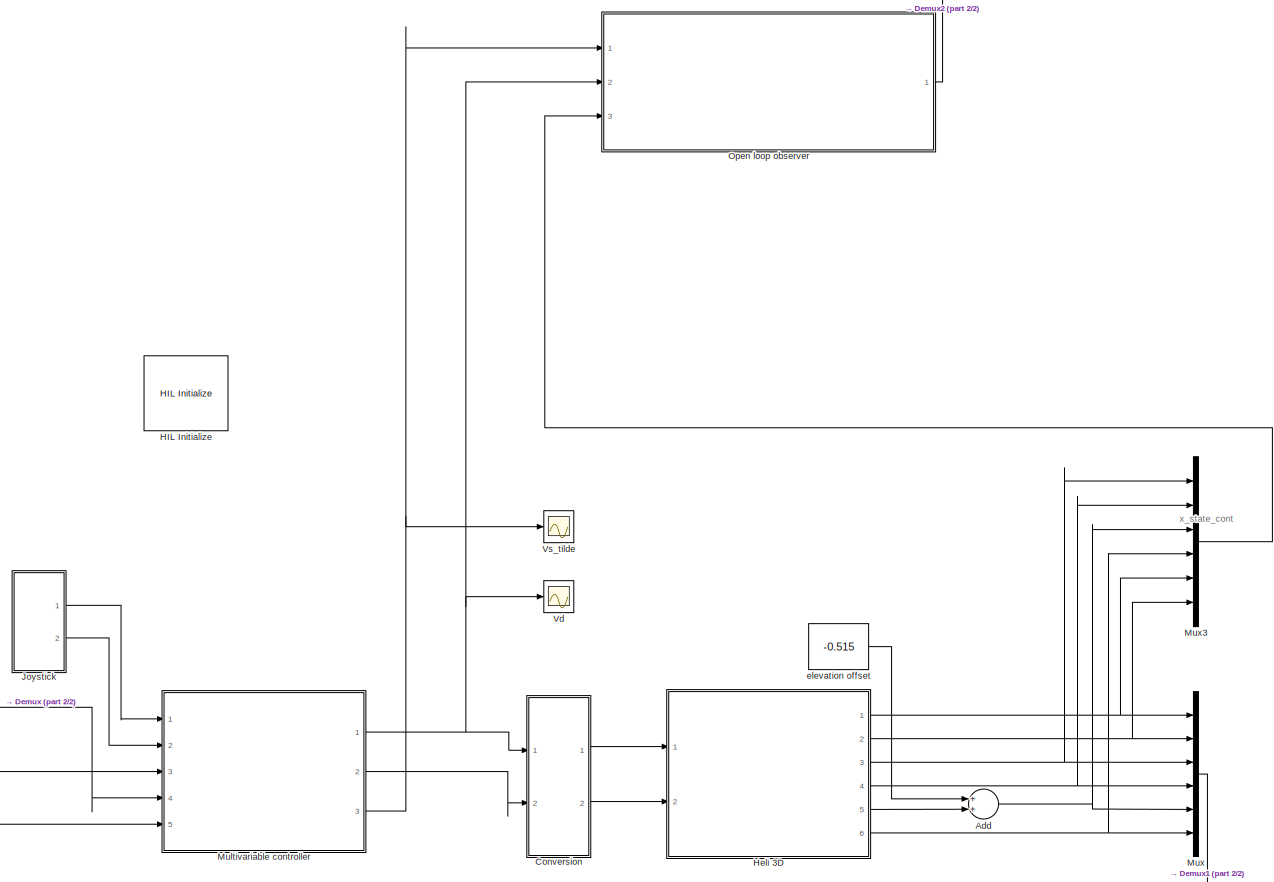
[diagram: root canvas - part 1/2, right side, full height]
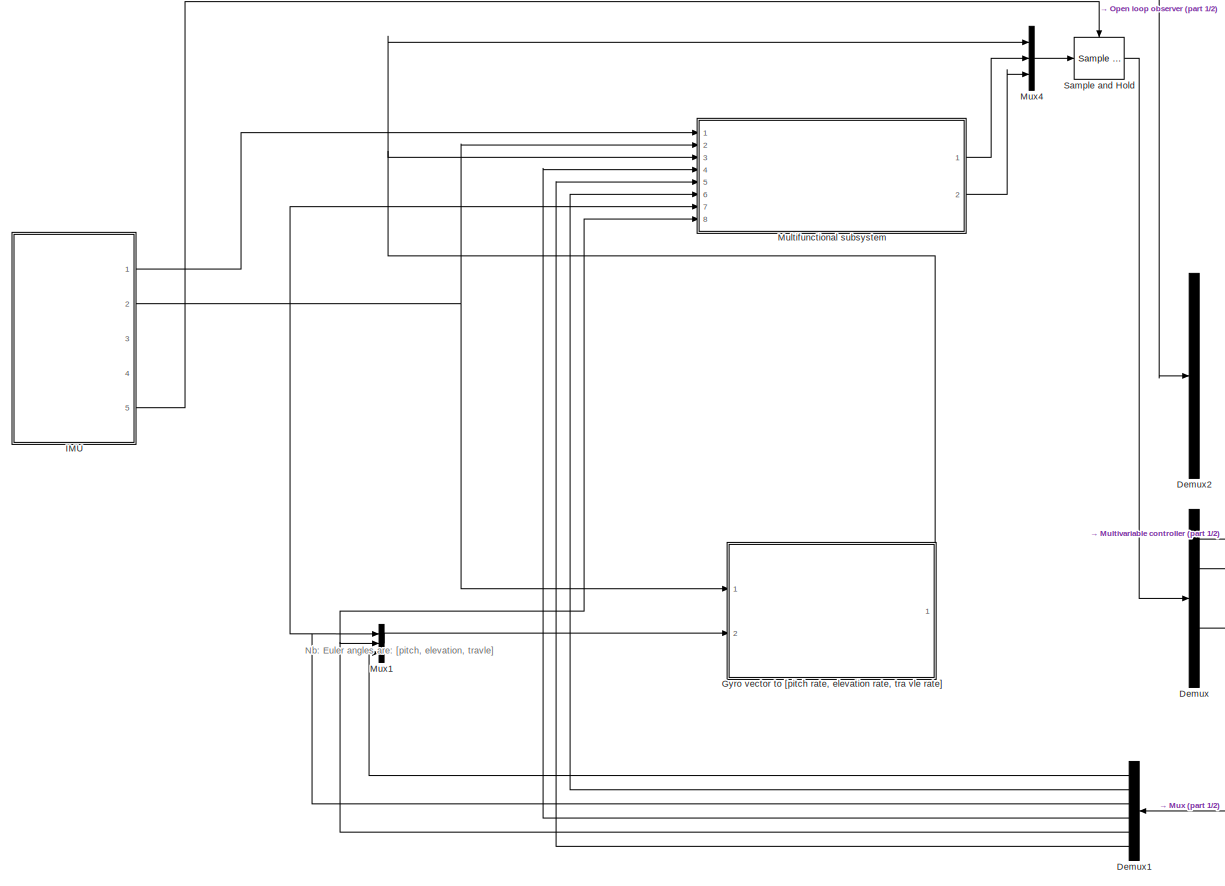
[diagram: root canvas - part 2/2, left side, full height]
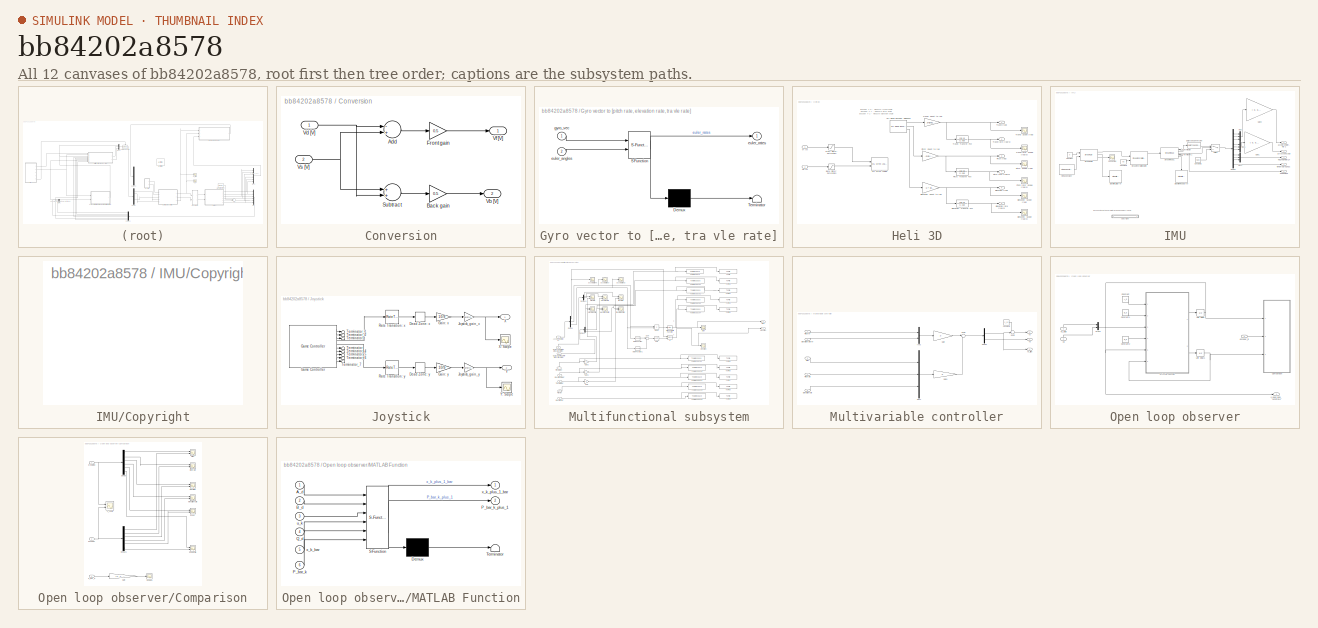
[diagram: thumbnail index - all 12 canvases of the model, root first then tree order]
MODEL slx_bb84202a8578
KIND model
CONFIG AbsTol = auto
CONFIG FixedStep = 0.002
CONFIG MaxStep = auto
CONFIG MinStep = auto
CONFIG PostLoadFcn = qc_set_target_type(getConfigSet(bdroot, 'QUARC Default Target Configuration'));
CONFIG RelTol = 1e-3
CONFIG SampleTimeConstraint = Unconstrained
CONFIG Solver = ode1
CONFIG SolverMode = Auto
CONFIG SolverName = ode1
CONFIG StartTime = 0.0
CONFIG StopTime = inf
BLOCK [Sum] Add
  InputSameDT = off
  OutDataTypeStr = Inherit: Inherit via internal rule
  Ports = [2, 1]
  SaturateOnIntegerOverflow = off
BLOCK [SubSystem] Conversion
  Ports = [2, 2]
  RequestExecContextInheritance = off
  Variant = off
BLOCK [Sum] Conversion/Add
  InputSameDT = off
  Inputs = -+
  OutDataTypeStr = Inherit: Inherit via internal rule
  Ports = [2, 1]
  SaturateOnIntegerOverflow = off
BLOCK [Gain] Conversion/Back gain
  Gain = 0.5
  OutDataTypeStr = Inherit: Inherit via internal rule
  ParamDataTypeStr = Inherit: Inherit via internal rule
  SaturateOnIntegerOverflow = off
BLOCK [Gain] Conversion/Front gain
  Gain = 0.5
  OutDataTypeStr = Inherit: Inherit via internal rule
  ParamDataTypeStr = Inherit: Inherit via internal rule
  SaturateOnIntegerOverflow = off
BLOCK [Sum] Conversion/Subtract
  InputSameDT = off
  OutDataTypeStr = Inherit: Inherit via internal rule
  Ports = [2, 1]
  SaturateOnIntegerOverflow = off
BLOCK [Outport] Conversion/Vb [V]
  IconDisplay = Port number
  Port = 2
BLOCK [Inport] Conversion/Vd [V]
  IconDisplay = Port number
BLOCK [Outport] Conversion/Vf [V]
  IconDisplay = Port number
BLOCK [Inport] Conversion/Vs [V]
  IconDisplay = Port number
  Port = 2
BLOCK [Demux] Demux
  DisplayOption = bar
  Outputs = 5
  Ports = [1, 5]
BLOCK [Demux] Demux1
  DisplayOption = bar
  Outputs = 6
  Ports = [1, 6]
BLOCK [Demux] Demux2
  DisplayOption = bar
  Outputs = 6
  Ports = [1, 6]
BLOCK [SubSystem] Gyro vector to [pitch rate, elevation rate, tra vle rate]
  ErrorFcn = Stateflow.Translate.translate
  PermitHierarchicalResolution = ExplicitOnly
  Ports = [2, 1]
  RequestExecContextInheritance = off
  SFBlockType = MATLAB Function
  TreatAsAtomicUnit = on
  Variant = off
BLOCK [Demux] Gyro vector to [pitch rate, elevation rate, tra vle rate]/ Demux 
  Outputs = 1
  Ports = [1, 1]
BLOCK [S-Function] Gyro vector to [pitch rate, elevation rate, tra vle rate]/ SFunction 
  EnableBusSupport = on
  FunctionName = sf_sfun
  PortCounts = [2 2]
  Ports = [2, 2]
  SFunctionDeploymentMode = off
  Tag = Stateflow S-Function heli_q8 2
BLOCK [Terminator] Gyro vector to [pitch rate, elevation rate, tra vle rate]/ Terminator 
BLOCK [Inport] Gyro vector to [pitch rate, elevation rate, tra vle rate]/euler_angles
  IconDisplay = Port number
  Port = 2
BLOCK [Outport] Gyro vector to [pitch rate, elevation rate, tra vle rate]/euler_rates
  IconDisplay = Port number
BLOCK [Inport] Gyro vector to [pitch rate, elevation rate, tra vle rate]/gyro_vec
  IconDisplay = Port number
BLOCK [Reference] HIL Initialize  REF=quarc_library/Data Acquisition/Generic/Configuration/HIL Initialize
  AttributesFormatString = %<object_name> (%<board_type>-%<board_number>)
  Ports = []
  Priority = -99
  SourceBlock = quarc_library/Data Acquisition/Generic/Configuration/HIL Initialize
  SourceType = HIL Initialize
  UserDataPersistent = on
BLOCK [SubSystem] Heli 3D
  Ports = [2, 6]
  RequestExecContextInheritance = off
  Variant = off
BLOCK [Saturate] Heli 3D/Back motor: Saturation
  InputPortMap = u0
  LowerLimit = -5
  Ports = [1, 1]
  UpperLimit = 5
BLOCK [Outport] Heli 3D/Elevation [rad]
  IconDisplay = Port number
  Port = 5
BLOCK [Outport] Heli 3D/Elevation rate [rad//s]
  IconDisplay = Port number
  Port = 6
BLOCK [Gain] Heli 3D/Elevation: Count to rad
  Gain = -2 * pi /4096
  OutDataTypeStr = Inherit: Inherit via internal rule
  ParamDataTypeStr = Inherit: Inherit via internal rule
  SaturateOnIntegerOverflow = off
BLOCK [Scope] Heli 3D/Elevation: Scope [rad//s]
  Ports = [1]
  ScopeSpecificationString = C++SS(StrPVP('Location','[1236, 673, 1560, 912]'),StrPVP('Open','off'),MxPVP('AxesTitles',24,'struct(''axes1'',''%<SignalLabel>'')'),MxPVP('ScopeGraphics',28,'struct(''FigureColor'',''[0.5 0.5 0.5]'',''AxesColor'',''[0 0 0]'',''AxesTickColor'',''[1 1 1]'',''LineColors'',''[1 1 0;1 0 1;0 1 1;1 0 0;0 1 0;0 0 1]'',''LineStyles'',''-|-|-|-|-|-'',''LineWidths'',''[0.5 0.5 0.5 0.5 0.5 0.5]'',''MarkerSty...<+342ch>
BLOCK [Scope] Heli 3D/Elevation: Scope [rad]
  Ports = [1]
  ScopeSpecificationString = Simulink.scopes.TimeScopeBlockCfg('CurrentConfiguration', extmgr.ConfigurationSet(extmgr.Configuration('Core','General UI',true),extmgr.Configuration('Core','Source UI',true),extmgr.Configuration('Sources','WiredSimulink',true,'DataLoggingVariableName','ScopeData12','DataLoggingSaveFormat','StructureWithTime','DataLoggingLimitDataPoints',true,'DataLoggingDecimation','1','DataLoggingDecimateData',t...<+1718ch>
BLOCK [TransferFcn] Heli 3D/Elevation: Transfer Fcn
  Denominator = [1 50]
  Numerator = [50 0]
BLOCK [Saturate] Heli 3D/Front motor: Saturation
  InputPortMap = u0
  LowerLimit = -5
  Ports = [1, 1]
  UpperLimit = 5
BLOCK [Reference] Heli 3D/HIL Read Encoder Timebase  REF=quarc_library/Data Acquisition/Generic/Timebases/HIL Read Encoder
Timebase
  AttributesFormatString = (%<object_name>)
  Ports = [0, 3]
  SourceBlock = quarc_library/Data Acquisition/Generic/Timebases/HIL Read Encoder\nTimebase
  SourceType = HIL Read Encoder Timebase
  UserDataPersistent = on
BLOCK [Reference] Heli 3D/HIL Write Analog  REF=quarc_library/Data Acquisition/Generic/Immediate I//O/HIL Write Analog
  AttributesFormatString = (%<object_name>)
  Ports = [2]
  SourceBlock = quarc_library/Data Acquisition/Generic/Immediate I//O/HIL Write Analog
  SourceType = HIL Write Analog
  UserDataPersistent = on
BLOCK [Outport] Heli 3D/Pitch [rad]
  IconDisplay = Port number
  Port = 3
BLOCK [Outport] Heli 3D/Pitch rate [rad//s]
  IconDisplay = Port number
  Port = 4
BLOCK [Gain] Heli 3D/Pitch: Count to rad
  Gain = -2*pi /4096
  OutDataTypeStr = Inherit: Inherit via internal rule
  ParamDataTypeStr = Inherit: Inherit via internal rule
  SaturateOnIntegerOverflow = off
BLOCK [Scope] Heli 3D/Pitch: Scope [rad]
  Ports = [1]
  ScopeSpecificationString = Simulink.scopes.TimeScopeBlockCfg('CurrentConfiguration', extmgr.ConfigurationSet(extmgr.Configuration('Core','General UI',true),extmgr.Configuration('Core','Source UI',true),extmgr.Configuration('Sources','WiredSimulink',true,'DataLoggingVariableName','ScopeData10','DataLoggingSaveFormat','StructureWithTime','DataLoggingLimitDataPoints',true,'DataLoggingDecimation','1','DataLoggingDecimateData',t...<+1672ch>
BLOCK [TransferFcn] Heli 3D/Pitch: Transfer Fcn
  Denominator = [1 50]
  Numerator = [50 0]
BLOCK [Scope] Heli 3D/Ptich rate: Scope [rad//s]
  Ports = [1]
  ScopeSpecificationString = C++SS(StrPVP('Location','[1236, 673, 1560, 912]'),StrPVP('Open','off'),MxPVP('AxesTitles',24,'struct(''axes1'',''%<SignalLabel>'')'),MxPVP('ScopeGraphics',28,'struct(''FigureColor'',''[0.5 0.5 0.5]'',''AxesColor'',''[0 0 0]'',''AxesTickColor'',''[1 1 1]'',''LineColors'',''[1 1 0;1 0 1;0 1 1;1 0 0;0 1 0;0 0 1]'',''LineStyles'',''-|-|-|-|-|-'',''LineWidths'',''[0.5 0.5 0.5 0.5 0.5 0.5]'',''MarkerSty...<+342ch>
BLOCK [Outport] Heli 3D/Travel [rad]
  IconDisplay = Port number
BLOCK [Outport] Heli 3D/Travel rate [rad//s]
  IconDisplay = Port number
  Port = 2
BLOCK [Scope] Heli 3D/Travel rate: Scope [rad//s]
  Ports = [1]
  ScopeSpecificationString = Simulink.scopes.TimeScopeBlockCfg('CurrentConfiguration', extmgr.ConfigurationSet(extmgr.Configuration('Core','General UI',true),extmgr.Configuration('Core','Source UI',true),extmgr.Configuration('Sources','WiredSimulink',true,'DataLoggingVariableName','ScopeData9','DataLoggingSaveFormat','StructureWithTime','DataLoggingLimitDataPoints',true,'DataLoggingDecimation','1','DataLoggingDecimateData',tr...<+1672ch>
BLOCK [Gain] Heli 3D/Travel: Count to rad
  Gain = 2*pi/8192
  OutDataTypeStr = Inherit: Inherit via internal rule
  ParamDataTypeStr = Inherit: Inherit via internal rule
  SaturateOnIntegerOverflow = off
BLOCK [Scope] Heli 3D/Travel: Scope [rad]
  Ports = [1]
  ScopeSpecificationString = Simulink.scopes.TimeScopeBlockCfg('CurrentConfiguration', extmgr.ConfigurationSet(extmgr.Configuration('Core','General UI',true),extmgr.Configuration('Core','Source UI',true),extmgr.Configuration('Sources','WiredSimulink',true,'DataLoggingVariableName','ScopeData8','DataLoggingSaveFormat','StructureWithTime','DataLoggingLimitDataPoints',true,'DataLoggingDecimation','1','DataLoggingDecimateData',tr...<+1672ch>
BLOCK [TransferFcn] Heli 3D/Travel: Transfer Fcn
  Denominator = [1 50]
  Numerator = [50 0]
BLOCK [Inport] Heli 3D/Vb [V]
  IconDisplay = Port number
  Port = 2
BLOCK [Inport] Heli 3D/Vf [V]
  IconDisplay = Port number
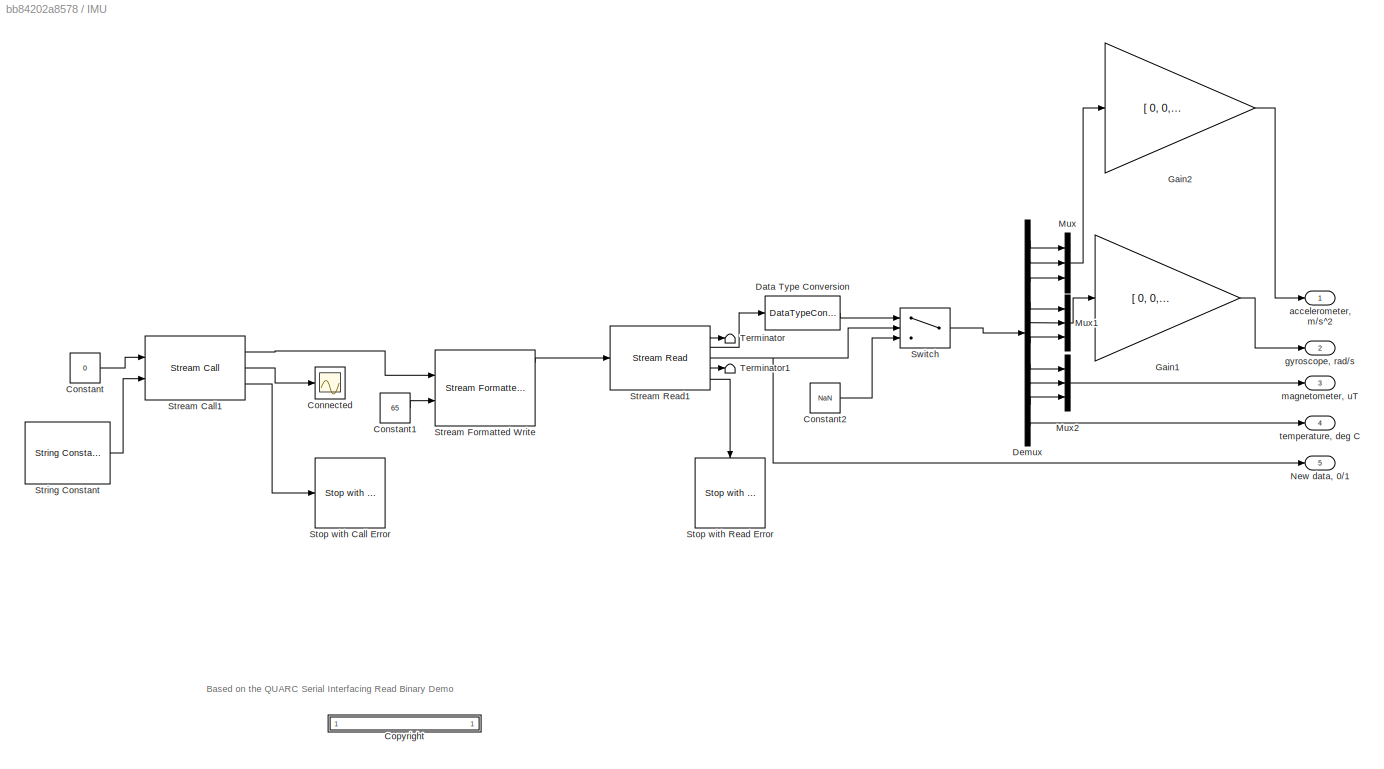
BLOCK [SubSystem] IMU
  Ports = [0, 5]
  RequestExecContextInheritance = off
  Variant = off
BLOCK [Scope] IMU/Connected
  Ports = [1]
  ScopeSpecificationString = C++SS(StrPVP('Location','[9, 751, 333, 990]'),StrPVP('Open','off'),MxPVP('AxesTitles',24,'struct(''axes1'',''%<SignalLabel>'')'),StrPVP('DataFormat','StructureWithTime'),StrPVP('BlockParamSampleTime','0'),StrPVP('LimitDataPoints','on'),StrPVP('Decimation','1'),StrPVP('BlockParamSampleInput','off'),StrPVP('SaveName','ScopeData'),StrPVP('SaveName','ScopeData6'))
BLOCK [Constant] IMU/Constant
  Value = 0
BLOCK [Constant] IMU/Constant1
  Value = 65
BLOCK [Constant] IMU/Constant2
  Value = NaN
BLOCK [SubSystem] IMU/<copyright redacted>
  OpenFcn = web('http://www.quanser.com/');
  Permissions = NoReadOrWrite
  PermitHierarchicalResolution = None
  Ports = []
  RequestExecContextInheritance = off
  Variant = off
BLOCK [DataTypeConversion] IMU/Data Type Conversion
  OutDataTypeStr = double
  RndMeth = Floor
  SaturateOnIntegerOverflow = off
BLOCK [Demux] IMU/Demux
  DisplayOption = bar
  Outputs = 10
  Ports = [1, 10]
BLOCK [Gain] IMU/Gain1
  Gain = [ 0, 0, 1; 0, 1, 0; -1, 0, 0]
  Multiplication = Matrix(K*u) (u vector)
  OutDataTypeStr = Inherit: Inherit via internal rule
  ParamDataTypeStr = Inherit: Inherit via internal rule
  SaturateOnIntegerOverflow = off
BLOCK [Gain] IMU/Gain2
  Gain = [ 0, 0, 1; 0, 1, 0; -1, 0, 0]
  Multiplication = Matrix(K*u) (u vector)
  OutDataTypeStr = Inherit: Inherit via internal rule
  ParamDataTypeStr = Inherit: Inherit via internal rule
  SaturateOnIntegerOverflow = off
BLOCK [Mux] IMU/Mux
  DisplayOption = bar
  Inputs = 3
  Ports = [3, 1]
BLOCK [Mux] IMU/Mux1
  DisplayOption = bar
  Inputs = 3
  Ports = [3, 1]
BLOCK [Mux] IMU/Mux2
  DisplayOption = bar
  Inputs = 3
  Ports = [3, 1]
BLOCK [Outport] IMU/New data, 0//1
  IconDisplay = Port number
  Port = 5
BLOCK [Reference] IMU/Stop with Call Error  REF=quarc_library/Sinks/Error Handling/Stop with Error
  Ports = [1]
  SourceBlock = quarc_library/Sinks/Error Handling/Stop with Error
  SourceType = Stop with Error
BLOCK [Reference] IMU/Stop with Read Error  REF=quarc_library/Sinks/Error Handling/Stop with Error
  Ports = [1]
  SourceBlock = quarc_library/Sinks/Error Handling/Stop with Error
  SourceType = Stop with Error
BLOCK [Reference] IMU/Stream Call1  REF=quarc_library/Communications/Intermediate/Stream Call
  Ports = [2, 3]
  SourceBlock = quarc_library/Communications/Intermediate/Stream Call
  SourceType = Stream Call
BLOCK [Reference] IMU/Stream Formatted Write  REF=quarc_library/Communications/Intermediate/Stream Formatted
Write
  Ports = [2, 5]
  SourceBlock = quarc_library/Communications/Intermediate/Stream Formatted\nWrite
  SourceType = Stream Formatted Write
BLOCK [Reference] IMU/Stream Read1  REF=quarc_library/Communications/Intermediate/Stream Read
  Ports = [1, 5]
  SourceBlock = quarc_library/Communications/Intermediate/Stream Read
  SourceType = Stream Read
BLOCK [Reference] IMU/String Constant  REF=quarc_library/Strings/String Constant
  AttributesFormatString = "serial://IMU:3?baud=115200,word=8,parity=none,stop=1"
  Ports = [0, 1]
  SourceBlock = quarc_library/Strings/String Constant
  SourceType = String Constant
BLOCK [Switch] IMU/Switch
  Criteria = u2 > Threshold
  InputSameDT = off
  SaturateOnIntegerOverflow = off
BLOCK [Terminator] IMU/Terminator
BLOCK [Terminator] IMU/Terminator1
BLOCK [Outport] IMU/accelerometer, m//s^2
  IconDisplay = Port number
BLOCK [Outport] IMU/gyroscope, rad//s
  IconDisplay = Port number
  Port = 2
BLOCK [Outport] IMU/magnetometer, uT
  IconDisplay = Port number
  Port = 3
BLOCK [Outport] IMU/temperature, deg C
  IconDisplay = Port number
  Port = 4
BLOCK [SubSystem] Joystick
  Ports = [0, 2]
  RequestExecContextInheritance = off
  Variant = off
BLOCK [DeadZone] Joystick/Dead Zone: x
  LowerValue = -0.1
  UpperValue = 0.1
BLOCK [DeadZone] Joystick/Dead Zone: y
  LowerValue = -0.1
  UpperValue = 0.1
BLOCK [Gain] Joystick/Gain: x
  Gain = 10/9
  OutDataTypeStr = Inherit: Inherit via internal rule
  ParamDataTypeStr = Inherit: Inherit via internal rule
  SaturateOnIntegerOverflow = off
BLOCK [Gain] Joystick/Gain: y
  Gain = 10/9
  OutDataTypeStr = Inherit: Inherit via internal rule
  ParamDataTypeStr = Inherit: Inherit via internal rule
  SaturateOnIntegerOverflow = off
BLOCK [Reference] Joystick/Game Controller  REF=quarc_library/Devices/Peripherals/Target/Game Controller
  Ports = [0, 10]
  SourceBlock = quarc_library/Devices/Peripherals/Target/Game Controller
  SourceType = Game Controller
BLOCK [Gain] Joystick/Joystick_gain_x
  Gain = Joystick_gain_x
  OutDataTypeStr = Inherit: Inherit via internal rule
  ParamDataTypeStr = Inherit: Inherit via internal rule
  SaturateOnIntegerOverflow = off
BLOCK [Gain] Joystick/Joystick_gain_y
  Gain = Joystick_gain_y
  OutDataTypeStr = Inherit: Inherit via internal rule
  ParamDataTypeStr = Inherit: Inherit via internal rule
  SaturateOnIntegerOverflow = off
BLOCK [RateTransition] Joystick/Rate Transition: x
BLOCK [RateTransition] Joystick/Rate Transition: y
BLOCK [Terminator] Joystick/Terminator
BLOCK [Terminator] Joystick/Terminator1
BLOCK [Terminator] Joystick/Terminator_1
BLOCK [Terminator] Joystick/Terminator_2
BLOCK [Terminator] Joystick/Terminator_4
BLOCK [Terminator] Joystick/Terminator_5
BLOCK [Terminator] Joystick/Terminator_6
BLOCK [Terminator] Joystick/Terminator_7
BLOCK [Outport] Joystick/X
  IconDisplay = Port number
BLOCK [Scope] Joystick/X: Scope
  Ports = [1]
  ScopeSpecificationString = C++SS(StrPVP('Location','[894, 60, 1218, 301]'),StrPVP('Open','off'),StrPVP('ZoomMode','yonly'),MxPVP('AxesTitles',24,'struct(''axes1'',''%<SignalLabel>'')'),MxPVP('ScopeGraphics',28,'struct(''FigureColor'',''[0.5 0.5 0.5]'',''AxesColor'',''[0 0 0]'',''AxesTickColor'',''[1 1 1]'',''LineColors'',''[1 1 0;1 0 1;0 1 1;1 0 0;0 1 0;0 0 1]'',''LineStyles'',''-|-|-|-|-|-'',''LineWidths'',''[0.5 0.5 0.5 0...<+364ch>
BLOCK [Outport] Joystick/Y
  IconDisplay = Port number
  Port = 2
BLOCK [Scope] Joystick/Y: Scope
  Ports = [1]
  ScopeSpecificationString = C++SS(StrPVP('Location','[894, 368, 1218, 604]'),StrPVP('Open','off'),MxPVP('AxesTitles',24,'struct(''axes1'',''%<SignalLabel>'')'),MxPVP('ScopeGraphics',28,'struct(''FigureColor'',''[0.5 0.5 0.5]'',''AxesColor'',''[0 0 0]'',''AxesTickColor'',''[1 1 1]'',''LineColors'',''[1 1 0;1 0 1;0 1 1;1 0 0;0 1 0;0 0 1]'',''LineStyles'',''-|-|-|-|-|-'',''LineWidths'',''[0.5 0.5 0.5 0.5 0.5 0.5]'',''MarkerStyl...<+340ch>
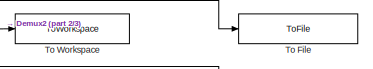
[diagram: Multifunctional subsystem - part 1/3, top right region]
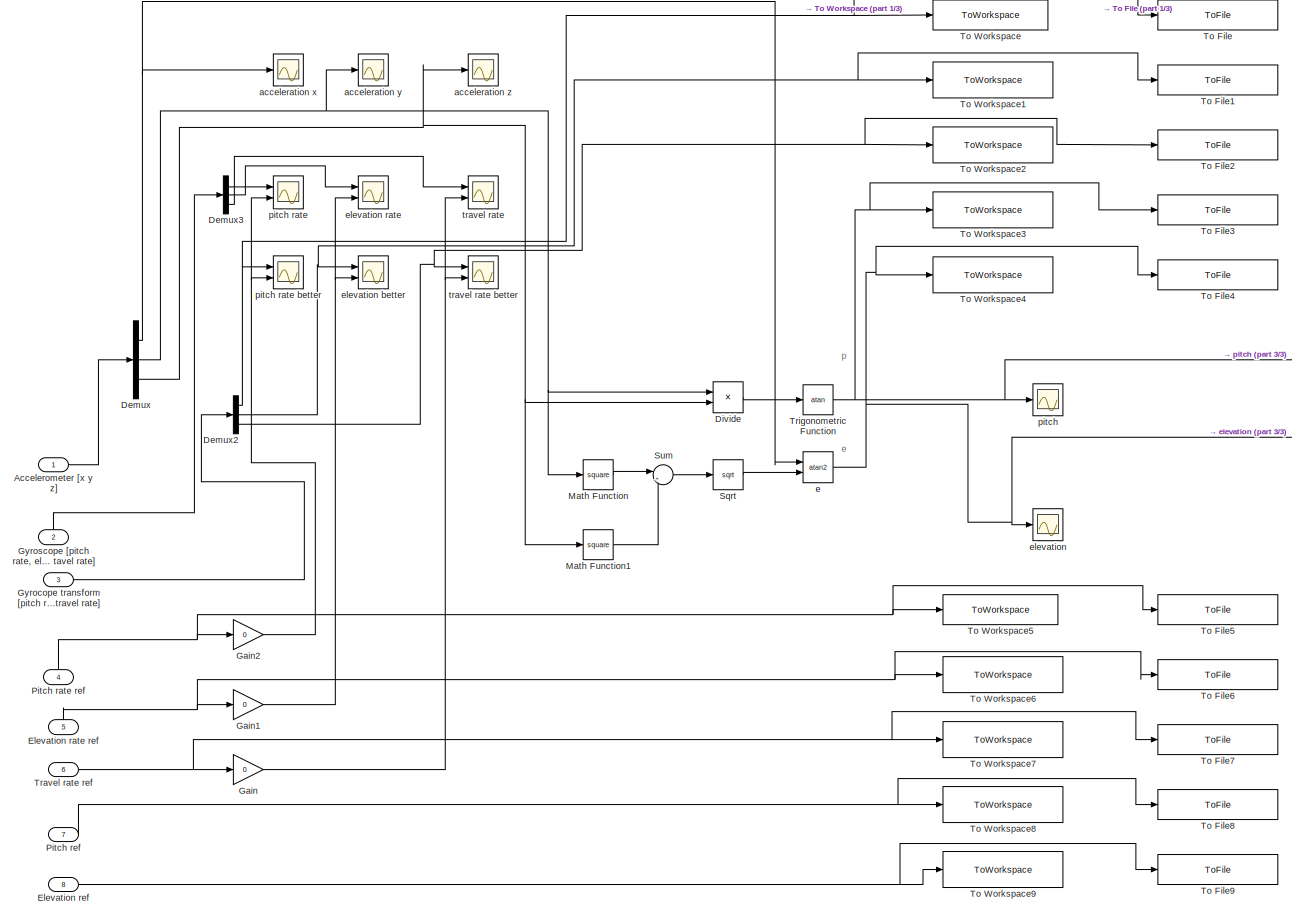
[diagram: Multifunctional subsystem - part 2/3, most of the canvas]
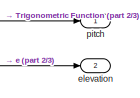
[diagram: Multifunctional subsystem - part 3/3, middle right region]
BLOCK [SubSystem] Multifunctional subsystem
  Ports = [8, 2]
  RequestExecContextInheritance = off
  Variant = off
BLOCK [Inport] Multifunctional subsystem/Accelerometer [x y z]
  IconDisplay = Port number
BLOCK [Demux] Multifunctional subsystem/Demux
  DisplayOption = bar
  Outputs = 3
  Ports = [1, 3]
BLOCK [Demux] Multifunctional subsystem/Demux2
  DisplayOption = bar
  Outputs = 3
  Ports = [1, 3]
BLOCK [Demux] Multifunctional subsystem/Demux3
  DisplayOption = bar
  Outputs = 3
  Ports = [1, 3]
BLOCK [Product] Multifunctional subsystem/Divide
  InputSameDT = off
  Inputs = */
  OutDataTypeStr = Inherit: Inherit via internal rule
  Ports = [2, 1]
  RndMeth = Floor
  SaturateOnIntegerOverflow = off
BLOCK [Inport] Multifunctional subsystem/Elevation rate ref
  IconDisplay = Port number
  Port = 5
BLOCK [Inport] Multifunctional subsystem/Elevation ref
  IconDisplay = Port number
  Port = 8
BLOCK [Gain] Multifunctional subsystem/Gain
  Gain = 0
  OutDataTypeStr = Inherit: Inherit via internal rule
  ParamDataTypeStr = Inherit: Inherit via internal rule
  SaturateOnIntegerOverflow = off
BLOCK [Gain] Multifunctional subsystem/Gain1
  Gain = 0
  OutDataTypeStr = Inherit: Inherit via internal rule
  ParamDataTypeStr = Inherit: Inherit via internal rule
  SaturateOnIntegerOverflow = off
BLOCK [Gain] Multifunctional subsystem/Gain2
  Gain = 0
  OutDataTypeStr = Inherit: Inherit via internal rule
  ParamDataTypeStr = Inherit: Inherit via internal rule
  SaturateOnIntegerOverflow = off
BLOCK [Inport] Multifunctional subsystem/Gyrocope transform [pitch rate, elevation rate, travel rate]
  IconDisplay = Port number
  Port = 3
BLOCK [Inport] Multifunctional subsystem/Gyroscope [pitch rate, elevation rate,  tavel rate]
  IconDisplay = Port number
  Port = 2
BLOCK [Math] Multifunctional subsystem/Math Function
  Operator = square
  Ports = [1, 1]
BLOCK [Math] Multifunctional subsystem/Math Function1
  Operator = square
  Ports = [1, 1]
BLOCK [Inport] Multifunctional subsystem/Pitch rate ref
  IconDisplay = Port number
  Port = 4
BLOCK [Inport] Multifunctional subsystem/Pitch ref
  IconDisplay = Port number
  Port = 7
BLOCK [Sqrt] Multifunctional subsystem/Sqrt
BLOCK [Sum] Multifunctional subsystem/Sum
  IconShape = round
  InputSameDT = off
  Inputs = |++
  OutDataTypeStr = Inherit: Inherit via internal rule
  Ports = [2, 1]
  SaturateOnIntegerOverflow = off
BLOCK [ToFile] Multifunctional subsystem/To File
  Filename = pitch_rate_imu.mat
  Ports = [1]
BLOCK [ToFile] Multifunctional subsystem/To File1
  Filename = elevation_rate_imu.mat
  Ports = [1]
BLOCK [ToFile] Multifunctional subsystem/To File2
  Filename = travel_rate_imu.mat
  Ports = [1]
BLOCK [ToFile] Multifunctional subsystem/To File3
  Filename = pitch_imu.mat
  Ports = [1]
BLOCK [ToFile] Multifunctional subsystem/To File4
  Filename = elevation_imu.mat
  Ports = [1]
BLOCK [ToFile] Multifunctional subsystem/To File5
  Filename = pitch_rate_encoder.mat
  Ports = [1]
BLOCK [ToFile] Multifunctional subsystem/To File6
  Filename = elevation_rate_encoder.mat
  Ports = [1]
BLOCK [ToFile] Multifunctional subsystem/To File7
  Filename = travel_rate_encoder.mat
  Ports = [1]
BLOCK [ToFile] Multifunctional subsystem/To File8
  Filename = pitch_encoder.mat
  Ports = [1]
BLOCK [ToFile] Multifunctional subsystem/To File9
  Filename = elevation_encoder.mat
  Ports = [1]
BLOCK [ToWorkspace] Multifunctional subsystem/To Workspace
  FixptAsFi = on
  MaxDataPoints = inf
  Ports = [1]
  SampleTime = -1
  Save2DSignal = 3-D array (concatenate along third dimension)
  VariableName = pitch_rate_imu
BLOCK [ToWorkspace] Multifunctional subsystem/To Workspace1
  FixptAsFi = on
  MaxDataPoints = inf
  Ports = [1]
  SampleTime = -1
  Save2DSignal = 3-D array (concatenate along third dimension)
  VariableName = elevation_rate_imu
BLOCK [ToWorkspace] Multifunctional subsystem/To Workspace2
  FixptAsFi = on
  MaxDataPoints = inf
  Ports = [1]
  SampleTime = -1
  Save2DSignal = 3-D array (concatenate along third dimension)
  VariableName = travel_rate_imu
BLOCK [ToWorkspace] Multifunctional subsystem/To Workspace3
  FixptAsFi = on
  MaxDataPoints = inf
  Ports = [1]
  SampleTime = -1
  Save2DSignal = 3-D array (concatenate along third dimension)
  VariableName = pitch_imu
BLOCK [ToWorkspace] Multifunctional subsystem/To Workspace4
  FixptAsFi = on
  MaxDataPoints = inf
  Ports = [1]
  SampleTime = -1
  Save2DSignal = 3-D array (concatenate along third dimension)
  VariableName = elevation_imu
BLOCK [ToWorkspace] Multifunctional subsystem/To Workspace5
  FixptAsFi = on
  MaxDataPoints = inf
  Ports = [1]
  SampleTime = -1
  Save2DSignal = 3-D array (concatenate along third dimension)
  VariableName = pitch_rate_encoder
BLOCK [ToWorkspace] Multifunctional subsystem/To Workspace6
  FixptAsFi = on
  MaxDataPoints = inf
  Ports = [1]
  SampleTime = -1
  Save2DSignal = 3-D array (concatenate along third dimension)
  VariableName = elevation_rate_encoder
BLOCK [ToWorkspace] Multifunctional subsystem/To Workspace7
  FixptAsFi = on
  MaxDataPoints = inf
  Ports = [1]
  SampleTime = -1
  Save2DSignal = 3-D array (concatenate along third dimension)
  VariableName = travel_rate_encoder
BLOCK [ToWorkspace] Multifunctional subsystem/To Workspace8
  FixptAsFi = on
  MaxDataPoints = inf
  Ports = [1]
  SampleTime = -1
  Save2DSignal = 3-D array (concatenate along third dimension)
  VariableName = pitch_encoder
BLOCK [ToWorkspace] Multifunctional subsystem/To Workspace9
  FixptAsFi = on
  MaxDataPoints = inf
  Ports = [1]
  SampleTime = -1
  Save2DSignal = 3-D array (concatenate along third dimension)
  VariableName = elevation_encoder
BLOCK [Inport] Multifunctional subsystem/Travel rate ref
  IconDisplay = Port number
  Port = 6
BLOCK [Trigonometry] Multifunctional subsystem/Trigonometric Function
  Operator = atan
  Ports = [1, 1]
BLOCK [Scope] Multifunctional subsystem/acceleration x
  Ports = [1]
  ScopeSpecificationString = Simulink.scopes.TimeScopeBlockCfg('CurrentConfiguration', extmgr.ConfigurationSet(extmgr.Configuration('Core','General UI',true),extmgr.Configuration('Core','Source UI',true),extmgr.Configuration('Sources','WiredSimulink',true,'DataLoggingVariableName','ScopeData4'),extmgr.Configuration('Visuals','Time Domain',true,'SerializedDisplays',{struct('MinYLimReal','-24.5056','MaxYLimReal','24.40744','YLa...<+1445ch>
BLOCK [Scope] Multifunctional subsystem/acceleration y
  Ports = [1]
  ScopeSpecificationString = Simulink.scopes.TimeScopeBlockCfg('CurrentConfiguration', extmgr.ConfigurationSet(extmgr.Configuration('Core','General UI',true),extmgr.Configuration('Core','Source UI',true),extmgr.Configuration('Sources','WiredSimulink',true,'DataLoggingVariableName','ScopeData5'),extmgr.Configuration('Visuals','Time Domain',true,'SerializedDisplays',{struct('MinYLimReal','-14.26927','MaxYLimReal','15.8184','YLa...<+1446ch>
BLOCK [Scope] Multifunctional subsystem/acceleration z 
  Ports = [1]
  ScopeSpecificationString = Simulink.scopes.TimeScopeBlockCfg('CurrentConfiguration', extmgr.ConfigurationSet(extmgr.Configuration('Core','General UI',true),extmgr.Configuration('Core','Source UI',true),extmgr.Configuration('Sources','WiredSimulink',true,'DataLoggingVariableName','ScopeData6'),extmgr.Configuration('Visuals','Time Domain',true,'SerializedDisplays',{struct('MinYLimReal','-23.35955','MaxYLimReal','14.0989','YLa...<+1449ch>
BLOCK [Trigonometry] Multifunctional subsystem/e
  Operator = atan2
  Ports = [2, 1]
BLOCK [Scope] Multifunctional subsystem/elevation
  Ports = [1]
  ScopeSpecificationString = Simulink.scopes.TimeScopeBlockCfg('CurrentConfiguration', extmgr.ConfigurationSet(extmgr.Configuration('Core','General UI',true),extmgr.Configuration('Core','Source UI',true),extmgr.Configuration('Sources','WiredSimulink',true,'DataLoggingVariableName','ScopeData3'),extmgr.Configuration('Visuals','Time Domain',true,'SerializedDisplays',{struct('MinYLimReal','-1.86315','MaxYLimReal','1.91497','YLab...<+1438ch>
BLOCK [Outport] Multifunctional subsystem/elevation 
  IconDisplay = Port number
  Port = 2
BLOCK [Scope] Multifunctional subsystem/elevation better
  NumInputPorts = 2
  Ports = [2]
  ScopeSpecificationString = Simulink.scopes.TimeScopeBlockCfg('CurrentConfiguration', extmgr.ConfigurationSet(extmgr.Configuration('Core','General UI',true),extmgr.Configuration('Core','Source UI',true),extmgr.Configuration('Sources','WiredSimulink',true,'DataLoggingVariableName','ScopeData2'),extmgr.Configuration('Visuals','Time Domain',true,'SerializedDisplays',{struct('MinYLimReal','-0.91427','MaxYLimReal','0.98867','YLab...<+1498ch>
BLOCK [Scope] Multifunctional subsystem/elevation rate 
  NumInputPorts = 2
  Ports = [2]
  ScopeSpecificationString = Simulink.scopes.TimeScopeBlockCfg('CurrentConfiguration', extmgr.ConfigurationSet(extmgr.Configuration('Core','General UI',true),extmgr.Configuration('Core','Source UI',true),extmgr.Configuration('Sources','WiredSimulink',true,'DataLoggingVariableName','ScopeData9'),extmgr.Configuration('Visuals','Time Domain',true,'SerializedDisplays',{struct('MinYLimReal','-0.77961','MaxYLimReal','0.99421','YLab...<+1526ch>
BLOCK [Scope] Multifunctional subsystem/pitch
  Ports = [1]
  ScopeSpecificationString = Simulink.scopes.TimeScopeBlockCfg('CurrentConfiguration', extmgr.ConfigurationSet(extmgr.Configuration('Core','General UI',true),extmgr.Configuration('Core','Source UI',true),extmgr.Configuration('Sources','WiredSimulink',true,'DataLoggingVariableName','ScopeData2'),extmgr.Configuration('Visuals','Time Domain',true,'SerializedDisplays',{struct('MinYLimReal','-1.95408','MaxYLimReal','1.94942','YLab...<+1458ch>
BLOCK [Outport] Multifunctional subsystem/pitch 
  IconDisplay = Port number
BLOCK [Scope] Multifunctional subsystem/pitch rate 
  NumInputPorts = 2
  Ports = [2]
  ScopeSpecificationString = Simulink.scopes.TimeScopeBlockCfg('CurrentConfiguration', extmgr.ConfigurationSet(extmgr.Configuration('Core','General UI',true),extmgr.Configuration('Core','Source UI',true),extmgr.Configuration('Sources','WiredSimulink',true,'DataLoggingVariableName','ScopeData7'),extmgr.Configuration('Visuals','Time Domain',true,'SerializedDisplays',{struct('MinYLimReal','-2.09387','MaxYLimReal','2.49741','YLab...<+1522ch>
BLOCK [Scope] Multifunctional subsystem/pitch rate better
  NumInputPorts = 2
  Ports = [2]
  ScopeSpecificationString = Simulink.scopes.TimeScopeBlockCfg('CurrentConfiguration', extmgr.ConfigurationSet(extmgr.Configuration('Core','General UI',true),extmgr.Configuration('Core','Source UI',true),extmgr.Configuration('Sources','WiredSimulink',true,'DataLoggingVariableName','ScopeData1'),extmgr.Configuration('Visuals','Time Domain',true,'SerializedDisplays',{struct('MinYLimReal','-2.16758','MaxYLimReal','2.40269','YLab...<+1497ch>
BLOCK [Scope] Multifunctional subsystem/travel rate
  NumInputPorts = 2
  Ports = [2]
  ScopeSpecificationString = Simulink.scopes.TimeScopeBlockCfg('CurrentConfiguration', extmgr.ConfigurationSet(extmgr.Configuration('Core','General UI',true),extmgr.Configuration('Core','Source UI',true),extmgr.Configuration('Sources','WiredSimulink',true,'DataLoggingVariableName','ScopeData8'),extmgr.Configuration('Visuals','Time Domain',true,'SerializedDisplays',{struct('MinYLimReal','-1.24542','MaxYLimReal','1.2467','YLabe...<+1523ch>
BLOCK [Scope] Multifunctional subsystem/travel rate better
  NumInputPorts = 2
  Ports = [2]
  ScopeSpecificationString = Simulink.scopes.TimeScopeBlockCfg('CurrentConfiguration', extmgr.ConfigurationSet(extmgr.Configuration('Core','General UI',true),extmgr.Configuration('Core','Source UI',true),extmgr.Configuration('Sources','WiredSimulink',true,'DataLoggingVariableName','ScopeData3'),extmgr.Configuration('Visuals','Time Domain',true,'SerializedDisplays',{struct('MinYLimReal','-0.20492','MaxYLimReal','0.93989','YLab...<+1498ch>
BLOCK [SubSystem] Multivariable controller
  Ports = [5, 3]
  RequestExecContextInheritance = off
  Variant = off
BLOCK [Constant] Multivariable controller/Constant2
  Value = v_s0
BLOCK [Demux] Multivariable controller/Demux
  DisplayOption = bar
  Outputs = 2
  Ports = [1, 2]
BLOCK [Inport] Multivariable controller/Elevation rate
  IconDisplay = Port number
  Port = 5
BLOCK [Inport] Multivariable controller/Elevation rate ref
  IconDisplay = Port number
  Port = 2
BLOCK [Gain] Multivariable controller/Gain
  Gain = F
  Multiplication = Matrix(K*u) (u vector)
  OutDataTypeStr = Inherit: Inherit via internal rule
  ParamDataTypeStr = Inherit: Inherit via internal rule
  SaturateOnIntegerOverflow = off
BLOCK [Gain] Multivariable controller/Gain1
  Gain = K
  Multiplication = Matrix(K*u) (u vector)
  OutDataTypeStr = Inherit: Inherit via internal rule
  ParamDataTypeStr = Inherit: Inherit via internal rule
  SaturateOnIntegerOverflow = off
BLOCK [Mux] Multivariable controller/Mux2
  DisplayOption = bar
  Inputs = 3
  Ports = [3, 1]
BLOCK [Inport] Multivariable controller/Pitch
  IconDisplay = Port number
  Port = 3
BLOCK [Inport] Multivariable controller/Pitch rate
  IconDisplay = Port number
  Port = 4
BLOCK [Inport] Multivariable controller/Pitch ref 
  IconDisplay = Port number
BLOCK [Sum] Multivariable controller/Sum1
  IconShape = round
  InputSameDT = off
  Inputs = |+-
  OutDataTypeStr = Inherit: Inherit via internal rule
  Ports = [2, 1]
  SaturateOnIntegerOverflow = off
BLOCK [Sum] Multivariable controller/Sum2
  IconShape = round
  InputSameDT = off
  Inputs = ++|
  OutDataTypeStr = Inherit: Inherit via internal rule
  Ports = [2, 1]
  SaturateOnIntegerOverflow = off
BLOCK [Outport] Multivariable controller/Vd
  IconDisplay = Port number
BLOCK [Outport] Multivariable controller/Vs
  IconDisplay = Port number
  Port = 2
BLOCK [Outport] Multivariable controller/Vs_tilde
  IconDisplay = Port number
  Port = 3
BLOCK [Mux] Multivariable controller/r vec
  DisplayOption = bar
  Inputs = 2
  Ports = [2, 1]
BLOCK [Mux] Mux
  DisplayOption = bar
  Inputs = 6
  Ports = [6, 1]
BLOCK [Mux] Mux1
  DisplayOption = bar
  Inputs = 3
  Ports = [3, 1]
BLOCK [Mux] Mux3
  DisplayOption = bar
  Inputs = 6
  Ports = [6, 1]
BLOCK [Mux] Mux4
  DisplayOption = bar
  Inputs = 3
  Ports = [3, 1]
BLOCK [SubSystem] Open loop observer
  Ports = [3, 1]
  RequestExecContextInheritance = off
  Variant = off
BLOCK [SubSystem] Open loop observer/Comparison
  Ports = [3]
  RequestExecContextInheritance = off
  Variant = off
BLOCK [Demux] Open loop observer/Comparison/Demux
  DisplayOption = bar
  Outputs = 6
  Ports = [1, 6]
BLOCK [Demux] Open loop observer/Comparison/Demux1
  DisplayOption = bar
  Outputs = 6
  Ports = [1, 6]
BLOCK [Gain] Open loop observer/Comparison/Gain
  Gain = [1; 1; 1; 1; 1; 1]
  Multiplication = Matrix(u*K)
  OutDataTypeStr = Inherit: Inherit via internal rule
  ParamDataTypeStr = Inherit: Inherit via internal rule
  SaturateOnIntegerOverflow = off
BLOCK [Inport] Open loop observer/Comparison/P_bar_k
  IconDisplay = Port number
  Port = 3
BLOCK [Scope] Open loop observer/Comparison/Scope1
  Ports = [1]
  ScopeSpecificationString = Simulink.scopes.TimeScopeBlockCfg('CurrentConfiguration', extmgr.ConfigurationSet(extmgr.Configuration('Core','General UI',true),extmgr.Configuration('Core','Source UI',true),extmgr.Configuration('Sources','WiredSimulink',true,'DataLoggingVariableName','ScopeData3'),extmgr.Configuration('Visuals','Time Domain',true,'SerializedDisplays',{struct('MinYLimReal','-518585.3387','MaxYLimReal','4670007.58...<+1501ch>
BLOCK [Scope] Open loop observer/Comparison/elevation
  NumInputPorts = 2
  Ports = [2]
  ScopeSpecificationString = Simulink.scopes.TimeScopeBlockCfg('CurrentConfiguration', extmgr.ConfigurationSet(extmgr.Configuration('Core','General UI',true),extmgr.Configuration('Core','Source UI',true),extmgr.Configuration('Sources','WiredSimulink',true,'DataLoggingVariableName','ScopeData3'),extmgr.Configuration('Visuals','Time Domain',true,'SerializedDisplays',{struct('MinYLimReal','-1.38805','MaxYLimReal','2.97063','YLab...<+1523ch>
BLOCK [Scope] Open loop observer/Comparison/elevation rate
  NumInputPorts = 2
  Ports = [2]
  ScopeSpecificationString = Simulink.scopes.TimeScopeBlockCfg('CurrentConfiguration', extmgr.ConfigurationSet(extmgr.Configuration('Core','General UI',true),extmgr.Configuration('Core','Source UI',true),extmgr.Configuration('Sources','WiredSimulink',true,'DataLoggingVariableName','ScopeData4'),extmgr.Configuration('Visuals','Time Domain',true,'SerializedDisplays',{struct('MinYLimReal','-0.91511','MaxYLimReal','0.75322','YLab...<+1524ch>
BLOCK [Inport] Open loop observer/Comparison/encoder
  IconDisplay = Port number
  Port = 2
BLOCK [Scope] Open loop observer/Comparison/pitch
  NumInputPorts = 2
  Ports = [2]
  ScopeSpecificationString = Simulink.scopes.TimeScopeBlockCfg('CurrentConfiguration', extmgr.ConfigurationSet(extmgr.Configuration('Core','General UI',true),extmgr.Configuration('Core','Source UI',true),extmgr.Configuration('Sources','WiredSimulink',true,'DataLoggingVariableName','ScopeData1'),extmgr.Configuration('Visuals','Time Domain',true,'SerializedDisplays',{struct('MinYLimReal','-1.24904','MaxYLimReal','0.56489','YLab...<+1522ch>
BLOCK [Scope] Open loop observer/Comparison/pitch rate
  NumInputPorts = 2
  Ports = [2]
  ScopeSpecificationString = Simulink.scopes.TimeScopeBlockCfg('CurrentConfiguration', extmgr.ConfigurationSet(extmgr.Configuration('Core','General UI',true),extmgr.Configuration('Core','Source UI',true),extmgr.Configuration('Sources','WiredSimulink',true,'DataLoggingVariableName','ScopeData2'),extmgr.Configuration('Visuals','Time Domain',true,'SerializedDisplays',{struct('MinYLimReal','-1.01055','MaxYLimReal','0.86819','YLab...<+1523ch>
BLOCK [Inport] Open loop observer/Comparison/predicted
  IconDisplay = Port number
BLOCK [Scope] Open loop observer/Comparison/travel
  NumInputPorts = 2
  Ports = [2]
  ScopeSpecificationString = Simulink.scopes.TimeScopeBlockCfg('CurrentConfiguration', extmgr.ConfigurationSet(extmgr.Configuration('Core','General UI',true),extmgr.Configuration('Core','Source UI',true),extmgr.Configuration('Sources','WiredSimulink',true,'DataLoggingVariableName','ScopeData5'),extmgr.Configuration('Visuals','Time Domain',true,'SerializedDisplays',{struct('MinYLimReal','-83.13583','MaxYLimReal','16.51861','YL...<+1528ch>
BLOCK [Scope] Open loop observer/Comparison/travel rate
  NumInputPorts = 2
  Ports = [2]
  ScopeSpecificationString = Simulink.scopes.TimeScopeBlockCfg('CurrentConfiguration', extmgr.ConfigurationSet(extmgr.Configuration('Core','General UI',true),extmgr.Configuration('Core','Source UI',true),extmgr.Configuration('Sources','WiredSimulink',true,'DataLoggingVariableName','ScopeData6'),extmgr.Configuration('Visuals','Time Domain',true,'SerializedDisplays',{struct('MinYLimReal','-1.14008','MaxYLimReal','0.9461','YLabe...<+1521ch>
BLOCK [Scope] Open loop observer/Comparison/x_comp
  NumInputPorts = 2
  Ports = [2]
  ScopeSpecificationString = Simulink.scopes.TimeScopeBlockCfg('CurrentConfiguration', extmgr.ConfigurationSet(extmgr.Configuration('Core','General UI',true),extmgr.Configuration('Core','Source UI',true),extmgr.Configuration('Sources','WiredSimulink',true,'DataLoggingVariableName','ScopeData2'),extmgr.Configuration('Visuals','Time Domain',true,'SerializedDisplays',{struct('MinYLimReal','-2.58332','MaxYLimReal','6.37609','YLab...<+1838ch>
BLOCK [Constant] Open loop observer/Constant
  Value = A_d
BLOCK [Constant] Open loop observer/Constant1
  Value = B_d
BLOCK [Constant] Open loop observer/Constant2
  Value = Q_d
BLOCK [SubSystem] Open loop observer/MATLAB Function
  ErrorFcn = Stateflow.Translate.translate
  PermitHierarchicalResolution = ExplicitOnly
  Ports = [6, 2]
  RequestExecContextInheritance = off
  SFBlockType = MATLAB Function
  TreatAsAtomicUnit = on
  Variant = off
BLOCK [Demux] Open loop observer/MATLAB Function/ Demux 
  Outputs = 1
  Ports = [1, 1]
BLOCK [S-Function] Open loop observer/MATLAB Function/ SFunction 
  EnableBusSupport = on
  FunctionName = sf_sfun
  PortCounts = [6 3]
  Ports = [6, 3]
  SFunctionDeploymentMode = off
  Tag = Stateflow S-Function heli_q8 1
BLOCK [Terminator] Open loop observer/MATLAB Function/ Terminator 
BLOCK [Inport] Open loop observer/MATLAB Function/A_d
  IconDisplay = Port number
BLOCK [Inport] Open loop observer/MATLAB Function/B_d
  IconDisplay = Port number
  Port = 2
BLOCK [Inport] Open loop observer/MATLAB Function/P_bar_k
  IconDisplay = Port number
  Port = 6
BLOCK [Outport] Open loop observer/MATLAB Function/P_bar_k_plus_1
  IconDisplay = Port number
  Port = 2
BLOCK [Inport] Open loop observer/MATLAB Function/Q_d
  IconDisplay = Port number
  Port = 4
BLOCK [Inport] Open loop observer/MATLAB Function/u_k
  IconDisplay = Port number
  Port = 3
BLOCK [Inport] Open loop observer/MATLAB Function/x_k_bar
  IconDisplay = Port number
  Port = 5
BLOCK [Outport] Open loop observer/MATLAB Function/x_k_plus_1_bar
  IconDisplay = Port number
BLOCK [Mux] Open loop observer/Mux2
  DisplayOption = bar
  Inputs = 2
  Ports = [2, 1]
BLOCK [UnitDelay] Open loop observer/Unit Delay
  InitialCondition = [0; 0; 0; 0; 0; 0]
  InputProcessing = Elements as channels (sample based)
  SampleTime = 0.002
BLOCK [UnitDelay] Open loop observer/Unit Delay1
  InitialCondition = P_0
  InputProcessing = Elements as channels (sample based)
  SampleTime = 0.002
BLOCK [Inport] Open loop observer/Vd
  IconDisplay = Port number
  Port = 2
BLOCK [Inport] Open loop observer/Vs_tilde
  IconDisplay = Port number
BLOCK [Outport] Open loop observer/X_open_loop_estimate
  IconDisplay = Port number
BLOCK [Inport] Open loop observer/encoder_in
  IconDisplay = Port number
  Port = 3
BLOCK [Reference] Sample and Hold  REF=dspsigops/Sample
and Hold
  Ports = [1, 1, 0, 1]
  SourceBlock = dspsigops/Sample\nand Hold
  SourceType = Sample and Hold
BLOCK [Scope] Vd
  Ports = [1]
  ScopeSpecificationString = Simulink.scopes.TimeScopeBlockCfg('CurrentConfiguration', extmgr.ConfigurationSet(extmgr.Configuration('Core','General UI',true),extmgr.Configuration('Core','Source UI',true),extmgr.Configuration('Sources','WiredSimulink',true,'DataLoggingVariableName','ScopeData1'),extmgr.Configuration('Visuals','Time Domain',true,'SerializedDisplays',{struct('MinYLimReal','-1.00000','MaxYLimReal','1.00000','YLab...<+1385ch>
BLOCK [Scope] Vs_tilde
  Ports = [1]
  ScopeSpecificationString = Simulink.scopes.TimeScopeBlockCfg('CurrentConfiguration', extmgr.ConfigurationSet(extmgr.Configuration('Core','General UI',true),extmgr.Configuration('Core','Source UI',true),extmgr.Configuration('Sources','WiredSimulink',true,'DataLoggingVariableName','ScopeData7'),extmgr.Configuration('Visuals','Time Domain',true,'SerializedDisplays',{struct('MinYLimReal','-1.00000','MaxYLimReal','1.00000','YLab...<+1385ch>
BLOCK [Constant] elevation offset
  Value = -0.515
ANNOTATION (root): Nb: Euler angles are: [pitch, elevation, travle]
ANNOTATION (root): x_state_cont
ANNOTATION Heli 3D: Encoder # 0 - measure Travel angle Encoder # 1 - measure Pitch angle Encoder # 2 - measure Elavation angle
ANNOTATION IMU: Based on the QUARC Serial Interfacing Read Binary Demo
ANNOTATION Multifunctional subsystem: e
ANNOTATION Multifunctional subsystem: p
NET Add:1 -> Mux3:3, Mux:5
LINE Conversion/Add:1 -> Conversion/Front gain:1
LINE Conversion/Back gain:1 -> Conversion/Vb [V]:1
LINE Conversion/Front gain:1 -> Conversion/Vf [V]:1
LINE Conversion/Subtract:1 -> Conversion/Back gain:1
NET Conversion/Vd [V]:1 -> Conversion/Add:1, Conversion/Subtract:2
NET Conversion/Vs [V]:1 -> Conversion/Add:2, Conversion/Subtract:1
LINE Conversion:1 -> Heli 3D:1
LINE Conversion:2 -> Heli 3D:2
LINE Demux1:1 -> Mux1:3
LINE Demux1:2 -> Multifunctional subsystem:6
NET Demux1:3 -> Multifunctional subsystem:7, Mux1:1
LINE Demux1:4 -> Multifunctional subsystem:4
NET Demux1:5 -> Multifunctional subsystem:8, Mux1:2
LINE Demux1:6 -> Multifunctional subsystem:5
LINE Demux:1 -> Multivariable controller:4
LINE Demux:2 -> Multivariable controller:5
LINE Demux:4 -> Multivariable controller:3
NET Gyro vector to [pitch rate, elevation rate, tra vle rate]:1 -> Multifunctional subsystem:3, Mux4:1
LINE Heli 3D/Back motor: Saturation:1 -> Heli 3D/HIL Write Analog:2
NET Heli 3D/Elevation: Count to rad:1 -> Heli 3D/Elevation [rad]:1, Heli 3D/Elevation: Scope [rad]:1, Heli 3D/Elevation: Transfer Fcn:1
NET Heli 3D/Elevation: Transfer Fcn:1 -> Heli 3D/Elevation rate [rad//s]:1, Heli 3D/Elevation: Scope [rad//s]:1
LINE Heli 3D/Front motor: Saturation:1 -> Heli 3D/HIL Write Analog:1
LINE Heli 3D/HIL Read Encoder Timebase:1 -> Heli 3D/Travel: Count to rad:1
LINE Heli 3D/HIL Read Encoder Timebase:2 -> Heli 3D/Pitch: Count to rad:1
LINE Heli 3D/HIL Read Encoder Timebase:3 -> Heli 3D/Elevation: Count to rad:1
NET Heli 3D/Pitch: Count to rad:1 -> Heli 3D/Pitch [rad]:1, Heli 3D/Pitch: Scope [rad]:1, Heli 3D/Pitch: Transfer Fcn:1
NET Heli 3D/Pitch: Transfer Fcn:1 -> Heli 3D/Pitch rate [rad//s]:1, Heli 3D/Ptich rate: Scope [rad//s]:1
NET Heli 3D/Travel: Count to rad:1 -> Heli 3D/Travel [rad]:1, Heli 3D/Travel: Scope [rad]:1, Heli 3D/Travel: Transfer Fcn:1
NET Heli 3D/Travel: Transfer Fcn:1 -> Heli 3D/Travel rate [rad//s]:1, Heli 3D/Travel rate: Scope [rad//s]:1
LINE Heli 3D/Vb [V]:1 -> Heli 3D/Back motor: Saturation:1
LINE Heli 3D/Vf [V]:1 -> Heli 3D/Front motor: Saturation:1
NET Heli 3D:1 -> Mux3:5, Mux:1
NET Heli 3D:2 -> Mux3:6, Mux:2
NET Heli 3D:3 -> Mux3:1, Mux:3
NET Heli 3D:4 -> Mux3:2, Mux:4
LINE Heli 3D:5 -> Add:2
NET Heli 3D:6 -> Mux3:4, Mux:6
LINE IMU/Constant1:1 -> IMU/Stream Formatted Write:2
LINE IMU/Constant2:1 -> IMU/Switch:3
LINE IMU/Constant:1 -> IMU/Stream Call1:1
LINE IMU/Data Type Conversion:1 -> IMU/Switch:1
LINE IMU/Demux:1 -> IMU/Mux:1
LINE IMU/Demux:10 -> IMU/temperature, deg C:1
LINE IMU/Demux:2 -> IMU/Mux:2
LINE IMU/Demux:3 -> IMU/Mux:3
LINE IMU/Demux:4 -> IMU/Mux1:1
LINE IMU/Demux:5 -> IMU/Mux1:2
LINE IMU/Demux:6 -> IMU/Mux1:3
LINE IMU/Demux:7 -> IMU/Mux2:1
LINE IMU/Demux:8 -> IMU/Mux2:2
LINE IMU/Demux:9 -> IMU/Mux2:3
LINE IMU/Gain1:1 -> IMU/gyroscope, rad//s:1
LINE IMU/Gain2:1 -> IMU/accelerometer, m//s^2:1
LINE IMU/Mux1:1 -> IMU/Gain1:1
LINE IMU/Mux2:1 -> IMU/magnetometer, uT:1
LINE IMU/Mux:1 -> IMU/Gain2:1
LINE IMU/Stream Call1:1 -> IMU/Stream Formatted Write:1
LINE IMU/Stream Call1:2 -> IMU/Connected:1
LINE IMU/Stream Call1:3 -> IMU/Stop with Call Error:1
LINE IMU/Stream Formatted Write:1 -> IMU/Stream Read1:1
LINE IMU/Stream Read1:1 -> IMU/Terminator:1
LINE IMU/Stream Read1:2 -> IMU/Data Type Conversion:1
NET IMU/Stream Read1:3 -> IMU/New data, 0//1:1, IMU/Switch:2
LINE IMU/Stream Read1:4 -> IMU/Terminator1:1
LINE IMU/Stream Read1:5 -> IMU/Stop with Read Error:1
LINE IMU/String Constant:1 -> IMU/Stream Call1:2
LINE IMU/Switch:1 -> IMU/Demux:1
LINE IMU:1 -> Multifunctional subsystem:1
NET IMU:2 -> Gyro vector to [pitch rate, elevation rate, tra vle rate]:1, Multifunctional subsystem:2
LINE IMU:5 -> Sample and Hold:trigger
LINE Joystick/Dead Zone: x:1 -> Joystick/Gain: x:1
LINE Joystick/Dead Zone: y:1 -> Joystick/Gain: y:1
LINE Joystick/Gain: x:1 -> Joystick/Joystick_gain_x:1
LINE Joystick/Gain: y:1 -> Joystick/Joystick_gain_y:1
LINE Joystick/Game Controller:1 -> Joystick/Terminator_1:1
LINE Joystick/Game Controller:10 -> Joystick/Terminator_7:1
LINE Joystick/Game Controller:2 -> Joystick/Terminator_2:1
LINE Joystick/Game Controller:3 -> Joystick/Terminator1:1
LINE Joystick/Game Controller:4 -> Joystick/Rate Transition: x:1
LINE Joystick/Game Controller:5 -> Joystick/Rate Transition: y:1
LINE Joystick/Game Controller:6 -> Joystick/Terminator:1
LINE Joystick/Game Controller:7 -> Joystick/Terminator_4:1
LINE Joystick/Game Controller:8 -> Joystick/Terminator_5:1
LINE Joystick/Game Controller:9 -> Joystick/Terminator_6:1
NET Joystick/Joystick_gain_x:1 -> Joystick/X: Scope:1, Joystick/X:1
NET Joystick/Joystick_gain_y:1 -> Joystick/Y: Scope:1, Joystick/Y:1
LINE Joystick/Rate Transition: x:1 -> Joystick/Dead Zone: x:1
LINE Joystick/Rate Transition: y:1 -> Joystick/Dead Zone: y:1
LINE Joystick:1 -> Multivariable controller:1
LINE Joystick:2 -> Multivariable controller:2
LINE Multifunctional subsystem/Accelerometer [x y z]:1 -> Multifunctional subsystem/Demux:1
NET Multifunctional subsystem/Demux2:1 -> Multifunctional subsystem/To File:1, Multifunctional subsystem/To Workspace:1, Multifunctional subsystem/pitch rate better:1
NET Multifunctional subsystem/Demux2:2 -> Multifunctional subsystem/To File1:1, Multifunctional subsystem/To Workspace1:1, Multifunctional subsystem/elevation better:1
NET Multifunctional subsystem/Demux2:3 -> Multifunctional subsystem/To File2:1, Multifunctional subsystem/To Workspace2:1, Multifunctional subsystem/travel rate better:1
LINE Multifunctional subsystem/Demux3:1 -> Multifunctional subsystem/pitch rate :1
LINE Multifunctional subsystem/Demux3:2 -> Multifunctional subsystem/elevation rate :1
LINE Multifunctional subsystem/Demux3:3 -> Multifunctional subsystem/travel rate:1
NET Multifunctional subsystem/Demux:1 -> Multifunctional subsystem/acceleration x:1, Multifunctional subsystem/e:1
NET Multifunctional subsystem/Demux:2 -> Multifunctional subsystem/Divide:1, Multifunctional subsystem/Math Function:1, Multifunctional subsystem/acceleration y:1
NET Multifunctional subsystem/Demux:3 -> Multifunctional subsystem/Divide:2, Multifunctional subsystem/Math Function1:1, Multifunctional subsystem/acceleration z :1
LINE Multifunctional subsystem/Divide:1 -> Multifunctional subsystem/Trigonometric Function:1
NET Multifunctional subsystem/Elevation rate ref:1 -> Multifunctional subsystem/Gain1:1, Multifunctional subsystem/To File6:1, Multifunctional subsystem/To Workspace6:1
NET Multifunctional subsystem/Elevation ref:1 -> Multifunctional subsystem/To File9:1, Multifunctional subsystem/To Workspace9:1
NET Multifunctional subsystem/Gain1:1 -> Multifunctional subsystem/elevation better:2, Multifunctional subsystem/elevation rate :2
NET Multifunctional subsystem/Gain2:1 -> Multifunctional subsystem/pitch rate :2, Multifunctional subsystem/pitch rate better:2
NET Multifunctional subsystem/Gain:1 -> Multifunctional subsystem/travel rate better:2, Multifunctional subsystem/travel rate:2
LINE Multifunctional subsystem/Gyrocope transform [pitch rate, elevation rate, travel rate]:1 -> Multifunctional subsystem/Demux2:1
LINE Multifunctional subsystem/Gyroscope [pitch rate, elevation rate,  tavel rate]:1 -> Multifunctional subsystem/Demux3:1
LINE Multifunctional subsystem/Math Function1:1 -> Multifunctional subsystem/Sum:2
LINE Multifunctional subsystem/Math Function:1 -> Multifunctional subsystem/Sum:1
NET Multifunctional subsystem/Pitch rate ref:1 -> Multifunctional subsystem/Gain2:1, Multifunctional subsystem/To File5:1, Multifunctional subsystem/To Workspace5:1
NET Multifunctional subsystem/Pitch ref:1 -> Multifunctional subsystem/To File8:1, Multifunctional subsystem/To Workspace8:1
LINE Multifunctional subsystem/Sqrt:1 -> Multifunctional subsystem/e:2
LINE Multifunctional subsystem/Sum:1 -> Multifunctional subsystem/Sqrt:1
NET Multifunctional subsystem/Travel rate ref:1 -> Multifunctional subsystem/Gain:1, Multifunctional subsystem/To File7:1, Multifunctional subsystem/To Workspace7:1
NET Multifunctional subsystem/Trigonometric Function:1 -> Multifunctional subsystem/To File3:1, Multifunctional subsystem/To Workspace3:1, Multifunctional subsystem/pitch :1, Multifunctional subsystem/pitch:1
NET Multifunctional subsystem/e:1 -> Multifunctional subsystem/To File4:1, Multifunctional subsystem/To Workspace4:1, Multifunctional subsystem/elevation :1, Multifunctional subsystem/elevation:1
LINE Multifunctional subsystem:1 -> Mux4:2
LINE Multifunctional subsystem:2 -> Mux4:3
LINE Multivariable controller/Constant2:1 -> Multivariable controller/Sum2:1
NET Multivariable controller/Demux:1 -> Multivariable controller/Sum2:2, Multivariable controller/Vs_tilde:1
LINE Multivariable controller/Demux:2 -> Multivariable controller/Vd:1
LINE Multivariable controller/Elevation rate ref:1 -> Multivariable controller/r vec:2
LINE Multivariable controller/Elevation rate:1 -> Multivariable controller/Mux2:3
LINE Multivariable controller/Gain1:1 -> Multivariable controller/Sum1:2
LINE Multivariable controller/Gain:1 -> Multivariable controller/Sum1:1
LINE Multivariable controller/Mux2:1 -> Multivariable controller/Gain1:1
LINE Multivariable controller/Pitch rate:1 -> Multivariable controller/Mux2:2
LINE Multivariable controller/Pitch ref :1 -> Multivariable controller/r vec:1
LINE Multivariable controller/Pitch:1 -> Multivariable controller/Mux2:1
LINE Multivariable controller/Sum1:1 -> Multivariable controller/Demux:1
LINE Multivariable controller/Sum2:1 -> Multivariable controller/Vs:1
LINE Multivariable controller/r vec:1 -> Multivariable controller/Gain:1
NET Multivariable controller:1 -> Conversion:1, Open loop observer:2, Vd:1
LINE Multivariable controller:2 -> Conversion:2
NET Multivariable controller:3 -> Open loop observer:1, Vs_tilde:1
LINE Mux1:1 -> Gyro vector to [pitch rate, elevation rate, tra vle rate]:2
LINE Mux3:1 -> Open loop observer:3
LINE Mux4:1 -> Sample and Hold:1
LINE Mux:1 -> Demux1:1
LINE Open loop observer/Comparison/Demux1:1 -> Open loop observer/Comparison/pitch:2
LINE Open loop observer/Comparison/Demux1:2 -> Open loop observer/Comparison/pitch rate:2
LINE Open loop observer/Comparison/Demux1:3 -> Open loop observer/Comparison/elevation:2
LINE Open loop observer/Comparison/Demux1:4 -> Open loop observer/Comparison/elevation rate:2
LINE Open loop observer/Comparison/Demux1:5 -> Open loop observer/Comparison/travel:2
LINE Open loop observer/Comparison/Demux1:6 -> Open loop observer/Comparison/travel rate:2
LINE Open loop observer/Comparison/Demux:1 -> Open loop observer/Comparison/pitch:1
LINE Open loop observer/Comparison/Demux:2 -> Open loop observer/Comparison/pitch rate:1
LINE Open loop observer/Comparison/Demux:3 -> Open loop observer/Comparison/elevation:1
LINE Open loop observer/Comparison/Demux:4 -> Open loop observer/Comparison/elevation rate:1
LINE Open loop observer/Comparison/Demux:5 -> Open loop observer/Comparison/travel:1
LINE Open loop observer/Comparison/Demux:6 -> Open loop observer/Comparison/travel rate:1
LINE Open loop observer/Comparison/Gain:1 -> Open loop observer/Comparison/Scope1:1
LINE Open loop observer/Comparison/P_bar_k:1 -> Open loop observer/Comparison/Gain:1
NET Open loop observer/Comparison/encoder:1 -> Open loop observer/Comparison/Demux1:1, Open loop observer/Comparison/x_comp:2
NET Open loop observer/Comparison/predicted:1 -> Open loop observer/Comparison/Demux:1, Open loop observer/Comparison/x_comp:1
LINE Open loop observer/Constant1:1 -> Open loop observer/MATLAB Function:2
LINE Open loop observer/Constant2:1 -> Open loop observer/MATLAB Function:4
LINE Open loop observer/Constant:1 -> Open loop observer/MATLAB Function:1
LINE Open loop observer/MATLAB Function:1 -> Open loop observer/Unit Delay:1
LINE Open loop observer/MATLAB Function:2 -> Open loop observer/Unit Delay1:1
LINE Open loop observer/Mux2:1 -> Open loop observer/MATLAB Function:3
NET Open loop observer/Unit Delay1:1 -> Open loop observer/Comparison:3, Open loop observer/MATLAB Function:6
NET Open loop observer/Unit Delay:1 -> Open loop observer/Comparison:1, Open loop observer/MATLAB Function:5, Open loop observer/X_open_loop_estimate:1
LINE Open loop observer/Vd:1 -> Open loop observer/Mux2:2
LINE Open loop observer/Vs_tilde:1 -> Open loop observer/Mux2:1
LINE Open loop observer/encoder_in:1 -> Open loop observer/Comparison:2
LINE Open loop observer:1 -> Demux2:1
LINE Sample and Hold:1 -> Demux:1
LINE elevation offset:1 -> Add:1
note: NET lines group one-source signal fan-out (src -> all destinations, sorted); 1:1 wires keep LINE
CHART Open loop observer/MATLAB Function states=1 transitions=1
  STATE_LABEL 'eML_blk_kernel()'
  STATE_LABEL 'SCRIPT:\nfunction [x_k_plus_1_bar, P_bar_k_plus_1]  = fcn(A_d, B_d, u_k, Q_d, x_k_bar, P_bar_k)\n%#codegen\n\n\nx_k_plus_1_bar = A_d*x_k_bar+B_d*u_k;\nP_bar_k_plus_1 = A_d*P_bar_k*transpose(A_d)+Q_d;'
CHART Gyro vector to [pitch rate, elevation rate, tra vle rate] states=1 transitions=1
  STATE_LABEL 'eML_blk_kernel()'
  STATE_LABEL 'SCRIPT:\nfunction euler_rates = gyro_vec_to_euler_rates(gyro_vec,euler_angles)\n%#codegen\n    phi = euler_angles(1);\n    theta = euler_angles(2);\n    %psi = euler_angles(3);\n\n\n    T = [1, sin(phi)*tan(theta), cos(phi)*tan(theta);\n         0, cos(phi),            -sin(phi);\n         0, sin(phi)/cos(theta), cos(phi)/cos(theta)]; \neuler_rates = T*gyro_vec;'
